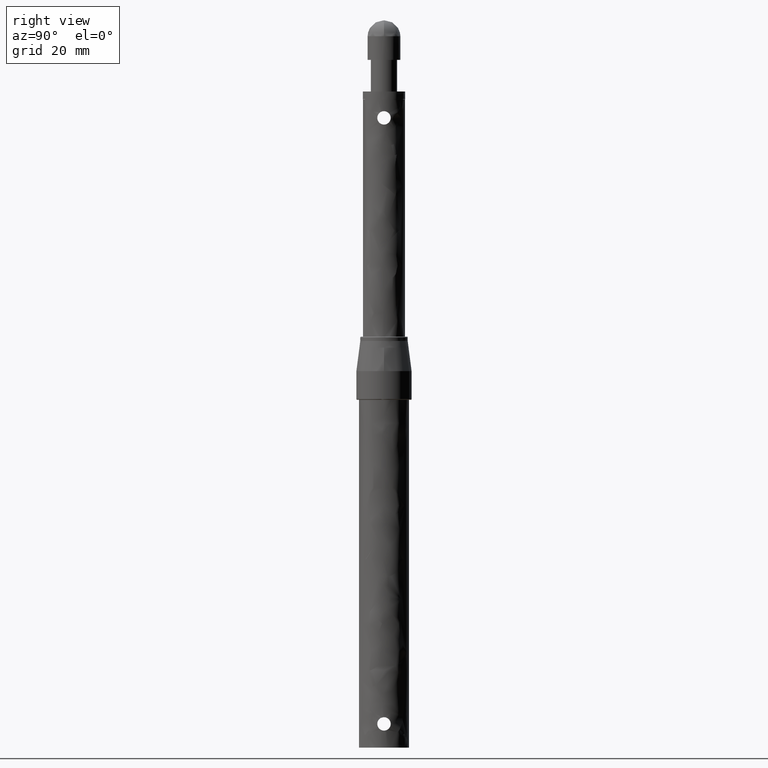
[diagram: clean part render]
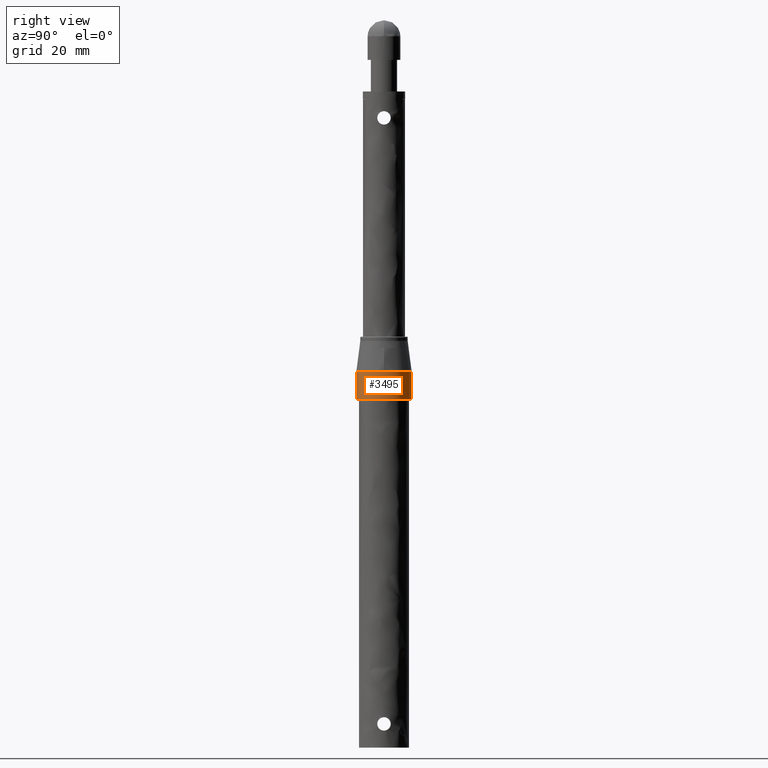
[diagram: same view with one face highlighted and labeled with its STEP entity id]
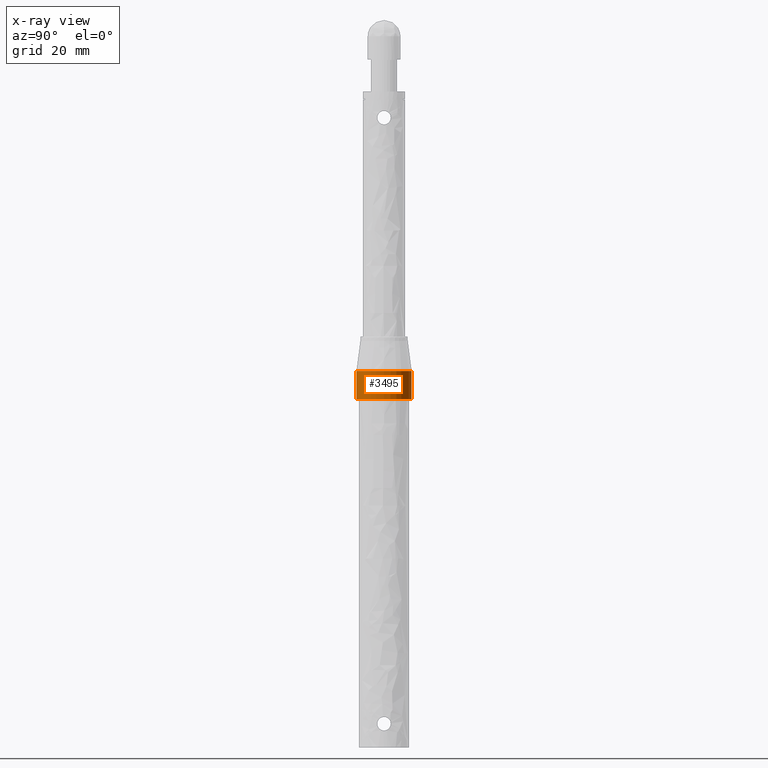
[diagram: x-ray of the same camera — body ghosted, the highlighted face saturated]
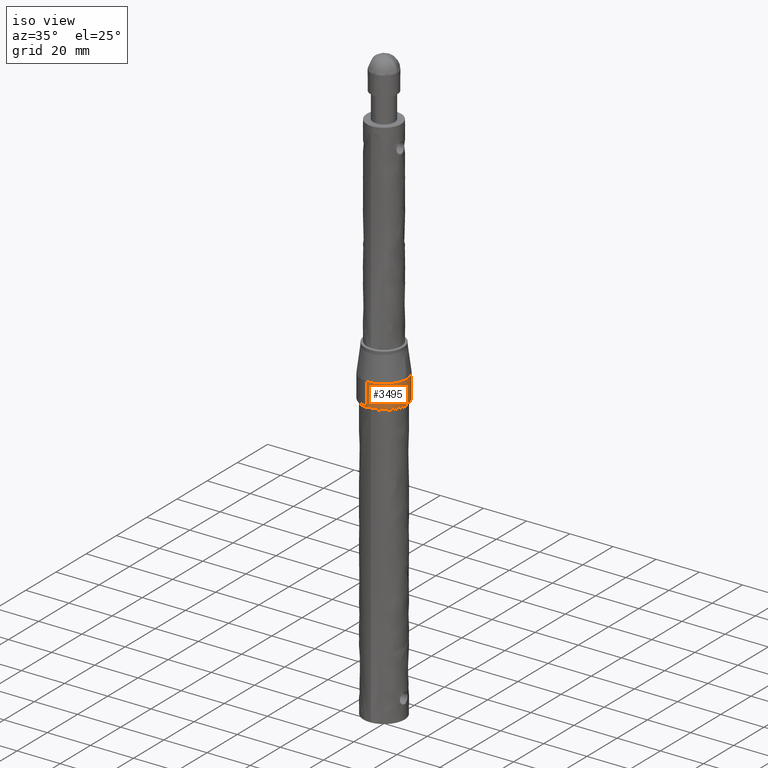
[diagram: same view with one face highlighted and labeled with its STEP entity id]
A machine part, right view. The second image highlights one B-rep face of the part: STEP entity #3495.
The next image is the same camera in x-ray: the body ghosted, the highlighted face saturated — about 0% of this face is hidden behind the body in this view.
A second angle (iso view) of the same face is appended — the face is thin or edge-on in the first view.
In plain terms, the highlighted face is a freeform B-spline surface patch.
Its self-contained STEP definition (entity closure, byte-faithful):
#2677=CARTESIAN_POINT('',(10.500000001526249,0.0,-13.136567573648080));
#2678=VERTEX_POINT('',#2677);
#2692=CARTESIAN_POINT('',(0.641009665748513,10.480415383404720,-13.136567573650060));
#2693=VERTEX_POINT('',#2692);
#2694=CARTESIAN_POINT('',(10.500000001526249,0.0,-13.136567573648080));
#2695=CARTESIAN_POINT('',(10.500000001525832,9.877413702331152,-13.136567573648081));
#2696=CARTESIAN_POINT('',(0.641009665748513,10.480415383404726,-13.136567573650058));
#2704=(BOUNDED_CURVE()B_SPLINE_CURVE(2,(#2694,#2695,#2696),.UNSPECIFIED.,.F.,.U.)B_SPLINE_CURVE_WITH_KNOTS((3,3),(0.0,0.239332962238973),.UNSPECIFIED.)CURVE()GEOMETRIC_REPRESENTATION_ITEM()RATIONAL_B_SPLINE_CURVE((1.0,0.719603993286674,0.976072041666783))REPRESENTATION_ITEM(''));
#2705=EDGE_CURVE('',#2678,#2693,#2704,.T.);
#2779=CARTESIAN_POINT('',(-0.641009665747094,-10.480415383381469,-13.136567573650320));
#2780=VERTEX_POINT('',#2779);
#2794=CARTESIAN_POINT('',(-0.641009665747094,-10.480415383381473,-13.136567573650325));
#2795=CARTESIAN_POINT('',(-0.320804014761584,-10.500000000009360,-13.136567573650252));
#2796=CARTESIAN_POINT('',(3.810027E-010,-10.500000000009210,-13.136567573650190));
#2797=CARTESIAN_POINT('',(10.500000001525981,-10.500000000004466,-13.136567573648081));
#2798=CARTESIAN_POINT('',(10.500000001526249,0.0,-13.136567573648080));
#2806=(BOUNDED_CURVE()B_SPLINE_CURVE(2,(#2794,#2795,#2796,#2797,#2798),.UNSPECIFIED.,.F.,.U.)B_SPLINE_CURVE_WITH_KNOTS((3,2,3),(0.739332962226456,0.750000000000000,1.0),.UNSPECIFIED.)CURVE()GEOMETRIC_REPRESENTATION_ITEM()RATIONAL_B_SPLINE_CURVE((0.976072041639956,0.987502787885208,1.0,0.707106781186547,1.0))REPRESENTATION_ITEM(''));
#2807=EDGE_CURVE('',#2780,#2678,#2806,.T.);
#3393=CARTESIAN_POINT('',(0.641009665747674,10.480415383390969,-23.700000000805829));
#3394=VERTEX_POINT('',#3393);
#3395=CARTESIAN_POINT('',(0.641009665747674,10.480415383390969,-23.700000000805829));
#3396=CARTESIAN_POINT('',(0.641009665748513,10.480415383404720,-13.136567573650060));
#3397=QUASI_UNIFORM_CURVE('',1,(#3395,#3396),.UNSPECIFIED.,.F.,.U.);
#3398=EDGE_CURVE('',#3394,#2693,#3397,.T.);
#3417=CARTESIAN_POINT('',(-0.641009665747673,-10.480415383390969,-23.700000000805829));
#3418=VERTEX_POINT('',#3417);
#3432=CARTESIAN_POINT('',(-0.641009665747673,-10.480415383390969,-23.700000000805829));
#3433=CARTESIAN_POINT('',(-0.641009665747094,-10.480415383381469,-13.136567573650320));
#3434=QUASI_UNIFORM_CURVE('',1,(#3432,#3433),.UNSPECIFIED.,.F.,.U.);
#3435=EDGE_CURVE('',#3418,#2780,#3434,.T.);
#3441=CARTESIAN_POINT('',(-0.641009665115999,-10.480415383429600,-23.964085811484789));
#3442=CARTESIAN_POINT('',(9.839405718313600,-11.121425048545600,-23.964085811484786));
#3443=CARTESIAN_POINT('',(10.480415383429600,-0.641009665115999,-23.964085811484789));
#3444=CARTESIAN_POINT('',(11.121425048545600,9.839405718313600,-23.964085811484786));
#3445=CARTESIAN_POINT('',(0.641009665115999,10.480415383429600,-23.964085811484789));
#3446=CARTESIAN_POINT('',(-0.641009665115999,-10.480415383429600,-12.865879617702170));
#3447=CARTESIAN_POINT('',(9.839405718313600,-11.121425048545600,-12.865879617702166));
#3448=CARTESIAN_POINT('',(10.480415383429600,-0.641009665115999,-12.865879617702170));
#3449=CARTESIAN_POINT('',(11.121425048545600,9.839405718313600,-12.865879617702166));
#3450=CARTESIAN_POINT('',(0.641009665115999,10.480415383429600,-12.865879617702170));
#3458=(BOUNDED_SURFACE()B_SPLINE_SURFACE(2,1,((#3441,#3446),(#3442,#3447),(#3443,#3448),(#3444,#3449),(#3445,#3450)),.UNSPECIFIED.,.F.,.F.,.U.)B_SPLINE_SURFACE_WITH_KNOTS((3,2,3),(2,2),(0.0,17.396969619669989,34.793939239339970),(0.0,11.098206193782620),.UNSPECIFIED.)GEOMETRIC_REPRESENTATION_ITEM()RATIONAL_B_SPLINE_SURFACE(((1.0,1.0),(0.707106781186548,0.707106781186548),(1.0,1.0),(0.707106781186548,0.707106781186548),(1.0,1.0)))REPRESENTATION_ITEM('')SURFACE());
#3459=ORIENTED_EDGE('',*,*,#2705,.F.);
#3460=ORIENTED_EDGE('',*,*,#2807,.F.);
#3461=ORIENTED_EDGE('',*,*,#3435,.F.);
#3462=CARTESIAN_POINT('',(10.500000000000000,-8.851079E-016,-23.700000000805840));
#3463=VERTEX_POINT('',#3462);
#3464=CARTESIAN_POINT('',(-0.641009665747675,-10.480415383390971,-23.700000000805833));
#3465=CARTESIAN_POINT('',(-0.320804014951908,-10.500000000000004,-23.700000000805836));
#3466=CARTESIAN_POINT('',(0.0,-10.500000000000000,-23.700000000805829));
#3467=CARTESIAN_POINT('',(10.499999999999998,-10.500000000000004,-23.700000000805844));
#3468=CARTESIAN_POINT('',(10.500000000000000,-8.851079E-016,-23.700000000805840));
#3476=(BOUNDED_CURVE()B_SPLINE_CURVE(2,(#3464,#3465,#3466,#3467,#3468),.UNSPECIFIED.,.F.,.U.)B_SPLINE_CURVE_WITH_KNOTS((3,2,3),(0.739332962231569,0.750000000000000,1.0),.UNSPECIFIED.)CURVE()GEOMETRIC_REPRESENTATION_ITEM()RATIONAL_B_SPLINE_CURVE((0.976072041650913,0.987502787891198,1.0,0.707106781186547,1.0))REPRESENTATION_ITEM(''));
#3477=EDGE_CURVE('',#3418,#3463,#3476,.T.);
#3478=ORIENTED_EDGE('',*,*,#3477,.T.);
#3479=CARTESIAN_POINT('',(10.500000000000000,-8.851079E-016,-23.700000000805840));
#3480=CARTESIAN_POINT('',(10.499999999999996,9.877413701913348,-23.700000000805833));
#3481=CARTESIAN_POINT('',(0.641009665747675,10.480415383390971,-23.700000000805833));
#3489=(BOUNDED_CURVE()B_SPLINE_CURVE(2,(#3479,#3480,#3481),.UNSPECIFIED.,.F.,.U.)B_SPLINE_CURVE_WITH_KNOTS((3,3),(0.0,0.239332962231569),.UNSPECIFIED.)CURVE()GEOMETRIC_REPRESENTATION_ITEM()RATIONAL_B_SPLINE_CURVE((1.0,0.719603993295350,0.976072041650913))REPRESENTATION_ITEM(''));
#3490=EDGE_CURVE('',#3463,#3394,#3489,.T.);
#3491=ORIENTED_EDGE('',*,*,#3490,.T.);
#3492=ORIENTED_EDGE('',*,*,#3398,.T.);
#3493=EDGE_LOOP('',(#3459,#3460,#3461,#3478,#3491,#3492));
#3494=FACE_OUTER_BOUND('',#3493,.T.);
#3495=ADVANCED_FACE('',(#3494),#3458,.T.);